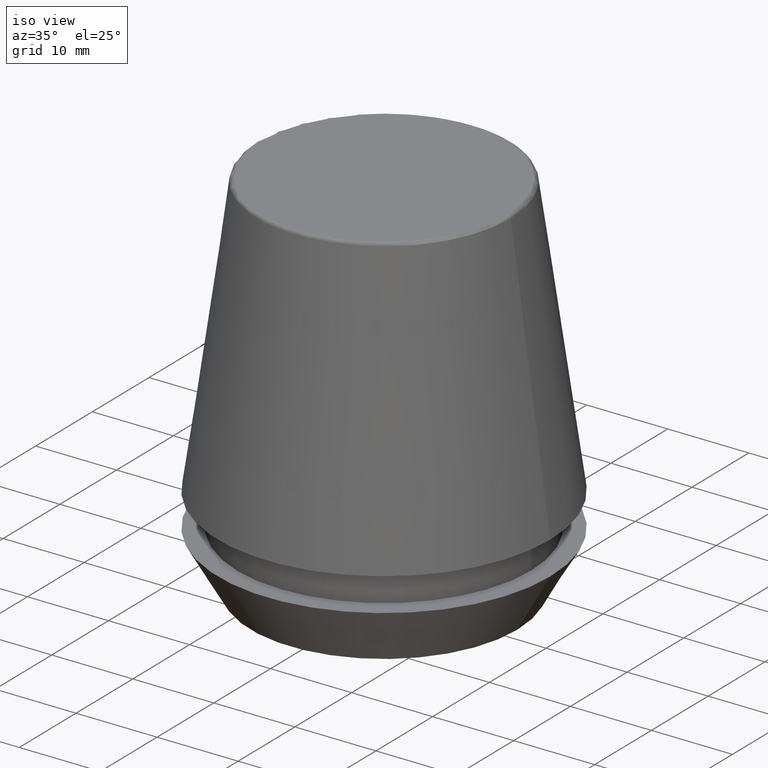
[diagram: clean part render]
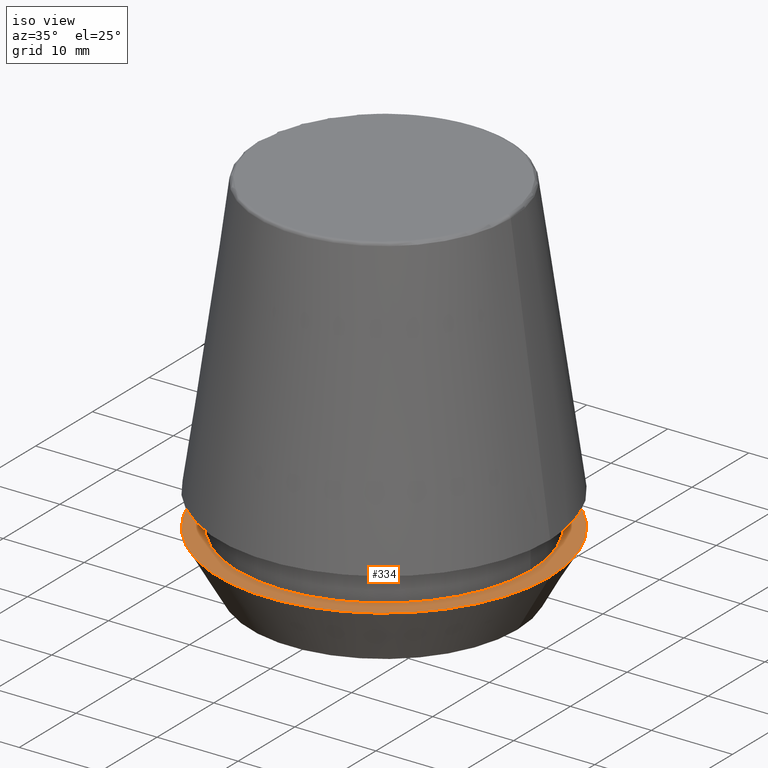
[diagram: same view with one face highlighted and labeled with its STEP entity id]
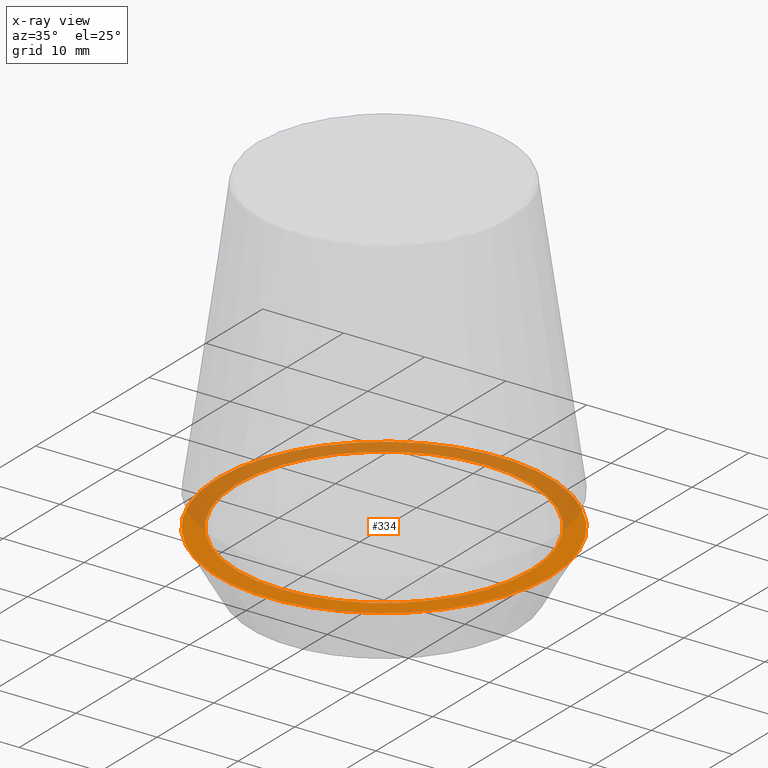
[diagram: x-ray of the same camera — body ghosted, the highlighted face saturated]
A machine part, iso view. The second image highlights one B-rep face of the part: STEP entity #334.
The next image is the same camera in x-ray: the body ghosted, the highlighted face saturated — about 47% of this face is hidden behind the body in this view.
In plain terms, the highlighted planar face has unit normal (0, 0, -1).
Its self-contained STEP definition (entity closure, byte-faithful):
#23 = CARTESIAN_POINT ( 'NONE',  ( -18.10000000000000100, 2.216610706456709600E-015, 6.999999999999999100 ) ) ;
#58 = CARTESIAN_POINT ( 'NONE',  ( 0.0000000000000000000, 0.0000000000000000000, 7.000000000000006200 ) ) ;
#67 = AXIS2_PLACEMENT_3D ( 'NONE', #174, #374, #137 ) ;
#69 = ORIENTED_EDGE ( 'NONE', *, *, #123, .F. ) ;
#70 = VERTEX_POINT ( 'NONE', #127 ) ;
#83 = DIRECTION ( 'NONE',  ( 1.000000000000000000, 0.0000000000000000000, 0.0000000000000000000 ) ) ;
#92 = EDGE_LOOP ( 'NONE', ( #118, #69 ) ) ;
#95 = ORIENTED_EDGE ( 'NONE', *, *, #170, .T. ) ;
#104 = DIRECTION ( 'NONE',  ( -0.0000000000000000000, -0.0000000000000000000, 1.000000000000000000 ) ) ;
#118 = ORIENTED_EDGE ( 'NONE', *, *, #345, .F. ) ;
#119 = AXIS2_PLACEMENT_3D ( 'NONE', #157, #381, #189 ) ;
#123 = EDGE_CURVE ( 'NONE', #173, #370, #312, .T. ) ;
#127 = CARTESIAN_POINT ( 'NONE',  ( -20.50000000000000000, 2.510525938252074100E-015, 7.000000000000006200 ) ) ;
#137 = DIRECTION ( 'NONE',  ( -1.000000000000000000, 0.0000000000000000000, -0.0000000000000000000 ) ) ;
#157 = CARTESIAN_POINT ( 'NONE',  ( 0.0000000000000000000, 0.0000000000000000000, 6.999999999999999100 ) ) ;
#170 = EDGE_CURVE ( 'NONE', #70, #175, #268, .T. ) ;
#172 = AXIS2_PLACEMENT_3D ( 'NONE', #263, #299, #211 ) ;
#173 = VERTEX_POINT ( 'NONE', #23 ) ;
#174 = CARTESIAN_POINT ( 'NONE',  ( 0.0000000000000000000, 20.50000000000000000, 7.000000000000002700 ) ) ;
#175 = VERTEX_POINT ( 'NONE', #252 ) ;
#189 = DIRECTION ( 'NONE',  ( 1.000000000000000000, 0.0000000000000000000, 0.0000000000000000000 ) ) ;
#198 = AXIS2_PLACEMENT_3D ( 'NONE', #295, #104, #330 ) ;
#211 = DIRECTION ( 'NONE',  ( 1.000000000000000000, 0.0000000000000000000, 0.0000000000000000000 ) ) ;
#219 = AXIS2_PLACEMENT_3D ( 'NONE', #58, #259, #83 ) ;
#237 = CIRCLE ( 'NONE', #219, 20.50000000000000000 ) ;
#244 = CIRCLE ( 'NONE', #172, 18.10000000000000100 ) ;
#247 = FACE_BOUND ( 'NONE', #92, .T. ) ;
#252 = CARTESIAN_POINT ( 'NONE',  ( 20.50000000000000000, 0.0000000000000000000, 7.000000000000006200 ) ) ;
#259 = DIRECTION ( 'NONE',  ( -0.0000000000000000000, -0.0000000000000000000, 1.000000000000000000 ) ) ;
#263 = CARTESIAN_POINT ( 'NONE',  ( 0.0000000000000000000, 0.0000000000000000000, 6.999999999999999100 ) ) ;
#267 = FACE_OUTER_BOUND ( 'NONE', #328, .T. ) ;
#268 = CIRCLE ( 'NONE', #198, 20.50000000000000000 ) ;
#295 = CARTESIAN_POINT ( 'NONE',  ( 0.0000000000000000000, 0.0000000000000000000, 7.000000000000006200 ) ) ;
#297 = EDGE_CURVE ( 'NONE', #175, #70, #237, .T. ) ;
#299 = DIRECTION ( 'NONE',  ( -0.0000000000000000000, -0.0000000000000000000, 1.000000000000000000 ) ) ;
#312 = CIRCLE ( 'NONE', #119, 18.10000000000000100 ) ;
#326 = PLANE ( 'NONE',  #67 ) ;
#328 = EDGE_LOOP ( 'NONE', ( #348, #95 ) ) ;
#330 = DIRECTION ( 'NONE',  ( 1.000000000000000000, 0.0000000000000000000, 0.0000000000000000000 ) ) ;
#334 = ADVANCED_FACE ( 'NONE', ( #247, #267 ), #326, .F. ) ;
#345 = EDGE_CURVE ( 'NONE', #370, #173, #244, .T. ) ;
#348 = ORIENTED_EDGE ( 'NONE', *, *, #297, .T. ) ;
#364 = CARTESIAN_POINT ( 'NONE',  ( 18.10000000000000100, 0.0000000000000000000, 6.999999999999999100 ) ) ;
#370 = VERTEX_POINT ( 'NONE', #364 ) ;
#374 = DIRECTION ( 'NONE',  ( 0.0000000000000000000, 0.0000000000000000000, -1.000000000000000000 ) ) ;
#381 = DIRECTION ( 'NONE',  ( -0.0000000000000000000, -0.0000000000000000000, 1.000000000000000000 ) ) ;